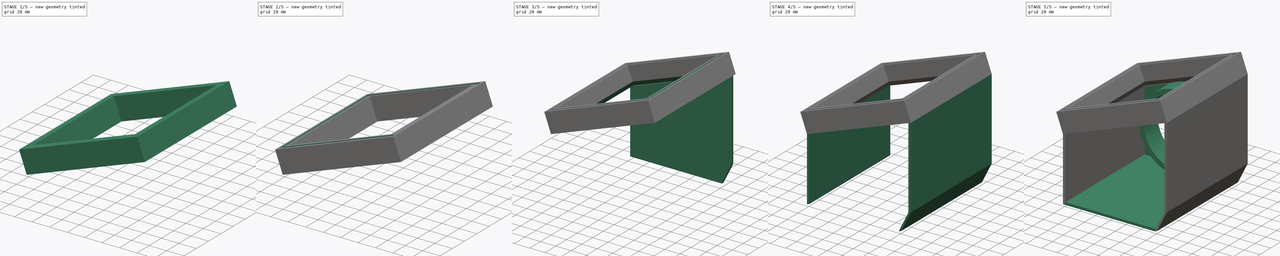
[diagram: build sequence overview — one tinted view per stage of 5, left to right]
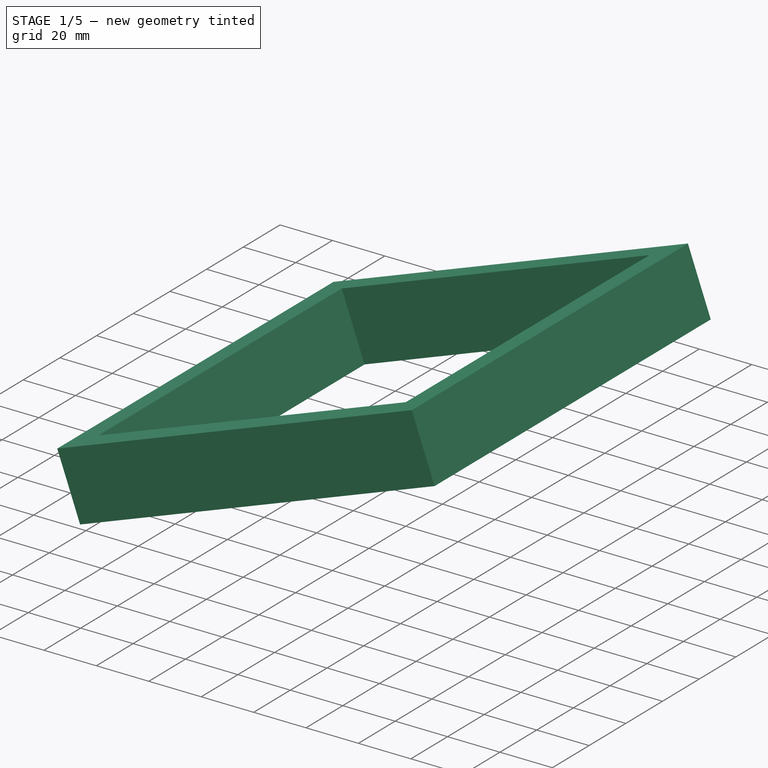
[diagram: stage 1 of 5 — iso view after this stage's code; geometry added in this stage tinted green]
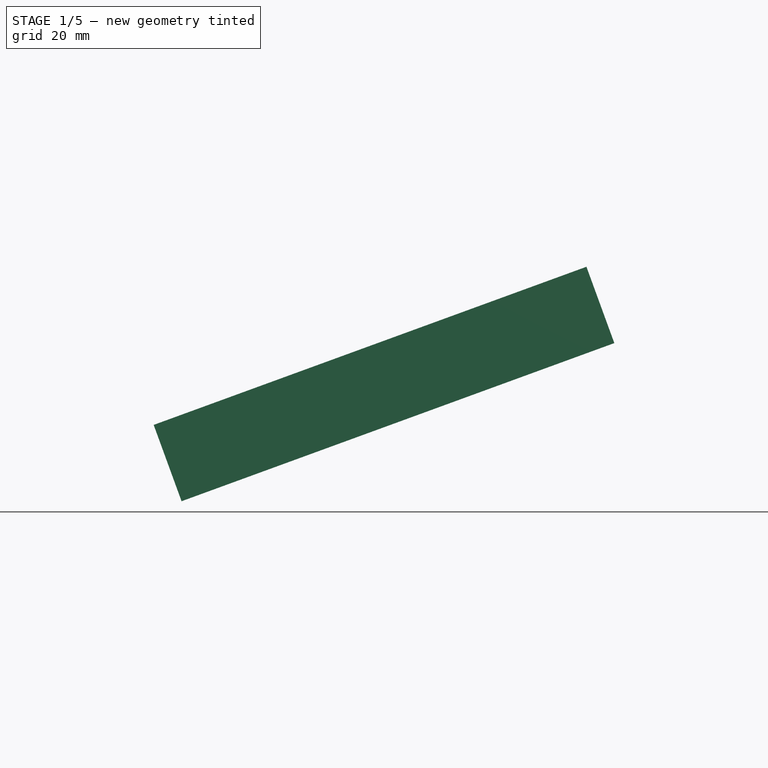
[diagram: stage 1 of 5 — front view after this stage's code; geometry added in this stage tinted green]
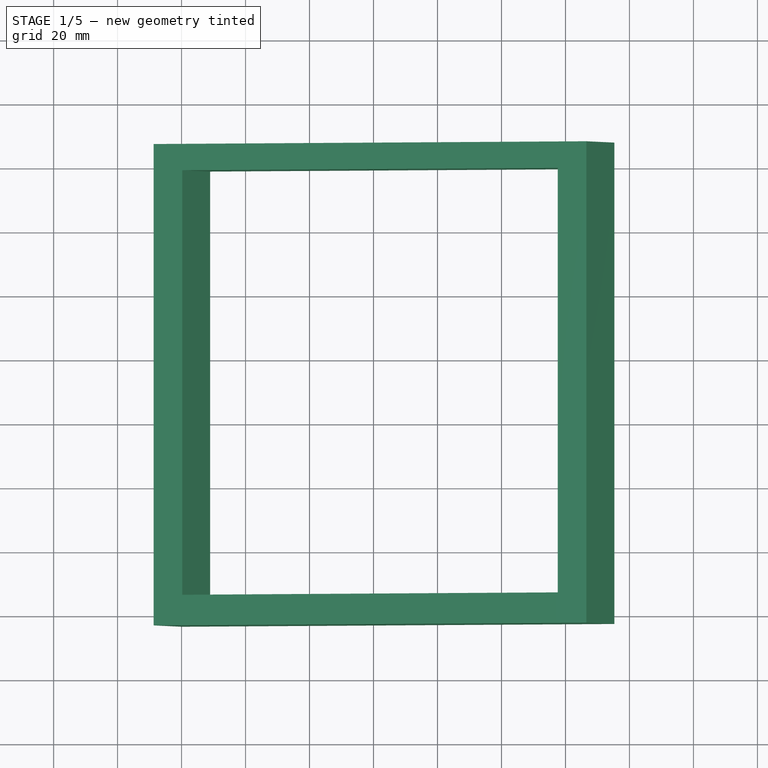
[diagram: stage 1 of 5 — top view after this stage's code; geometry added in this stage tinted green]
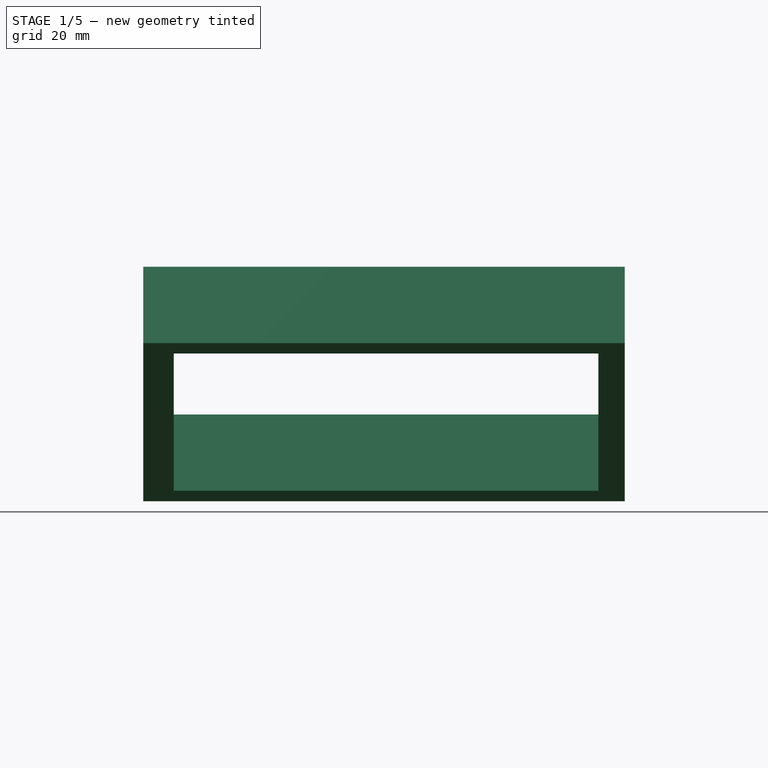
[diagram: stage 1 of 5 — right view after this stage's code; geometry added in this stage tinted green]
FCSTD DOCUMENT  (FreeCAD 0.16R6710 (Git))
Label: gutter
License: CreativeCommons Attribution
LicenseURL: http://creativecommons.org/licenses/by/4.0/
objects: Sketcher::SketchObject×6, Part::RuledSurface×5, PartDesign::Pocket×4, Part::Extrusion×4, App::FeaturePython×3, PartDesign::LinearPattern×3, PartDesign::Pad×2, Part::FeaturePython×1, Part::Box×1, PartDesign::Chamfer×1
note: 33 computed .brp shape members not serialized (recipe doc carries the construction recipe); baked Part::Feature solids carry a one-line shape summary decoded from their .brp

FEATURE [Part::Box] Box  label="Cube"
  Height = 25.4
  Length = 144.018
  Placement = pos=(-1.5e-11,-3.175,82.55) rot=(0,-1,0;0.350314rad)
  Width = 150.495
FEATURE [Sketcher::SketchObject] Sketch004
  Placement = pos=(-8.7171,-3.175,106.407) rot=(0,-1,0;0.350314rad)
  Support = -> Box [Face6]
  sketch-geometry (4):
    g0: LineSegment StartX=9.525 StartY=9.525 StartZ=0 EndX=134.493 EndY=9.525 EndZ=0
    g1: LineSegment StartX=134.493 StartY=9.525 StartZ=0 EndX=134.493 EndY=142.24 EndZ=0
    g2: LineSegment StartX=134.493 StartY=142.24 StartZ=0 EndX=9.525 EndY=142.24 EndZ=0
    g3: LineSegment StartX=9.525 StartY=142.24 StartZ=0 EndX=9.525 EndY=9.525 EndZ=0
  constraints (12):
    c: Coincident(g0,g1)
    c: Coincident(g1,g2)
    c: Coincident(g2,g3)
    c: Coincident(g3,g0)
    c: Horizontal(g0)
    c: Horizontal(g2)
    c: Vertical(g1)
    c: Vertical(g3)
    c: DistanceY(g-1,g0) = 9.525
    c: DistanceY(g3,g3) = 132.715
    c: DistanceX(g-1,g0) = 9.525
    c: DistanceX(g0,g0) = 124.968
FEATURE [App::FeaturePython] planeConstraint01  # a2plus constraint (typed FeaturePython)
  Object1 = Pocket
  Object2 = Box
  SubElement1 = Face8
  SubElement2 = Face5
  Type = plane
  directionConstraint = 1
  offset = 0
FEATURE [App::FeaturePython] planeConstraint02  # a2plus constraint (typed FeaturePython)
  Object1 = Box
  Object2 = Extrude003
  SubElement1 = Face4
  SubElement2 = Vertex5
  Type = plane
  directionConstraint = 0
  offset = 0
FEATURE [App::FeaturePython] planeConstraint03  # a2plus constraint (typed FeaturePython)
  Object1 = Box
  Object2 = Extrude003
  SubElement1 = Face1
  SubElement2 = Vertex5
  Type = plane
  directionConstraint = 0
  offset = 0
FEATURE [PartDesign::Pocket] Pocket001
  Length = 4.99999
  Placement = pos=(-1.5e-11,-3.175,82.55) rot=(0,-1,0;0.350314rad)
  Sketch = -> Sketch004
  Type = 1
FEATURE [PartDesign::LinearPattern] LinearPattern
  Direction = -> Pocket001 [Face4]
  Length = 111.379
  Occurrences = 6
  Originals = -> [Pocket001]
  Placement = pos=(-1.5e-11,-3.175,82.55) rot=(0,-1,0;0.350314rad)
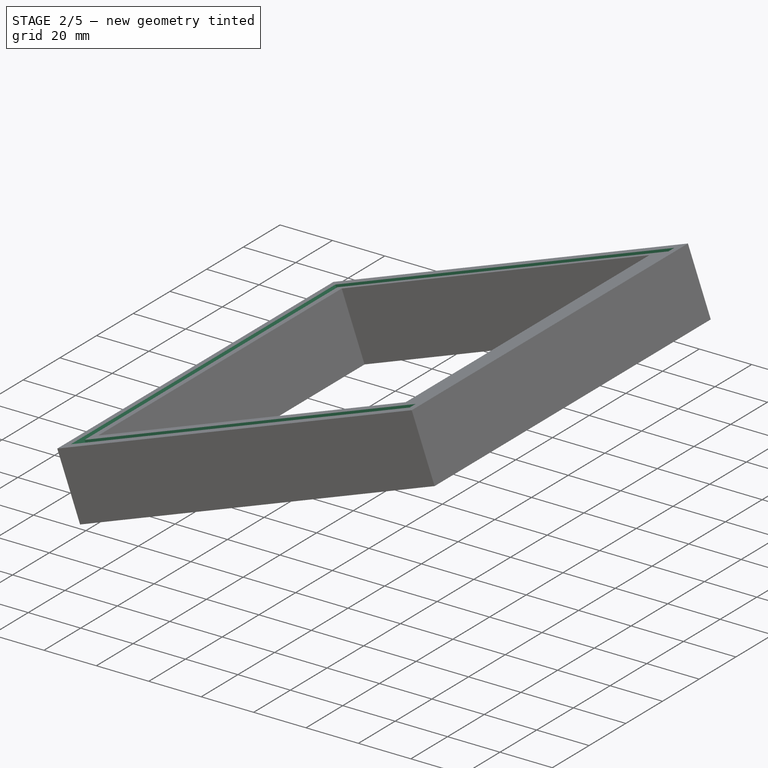
[diagram: stage 2 of 5 — iso view after this stage's code; geometry added in this stage tinted green]
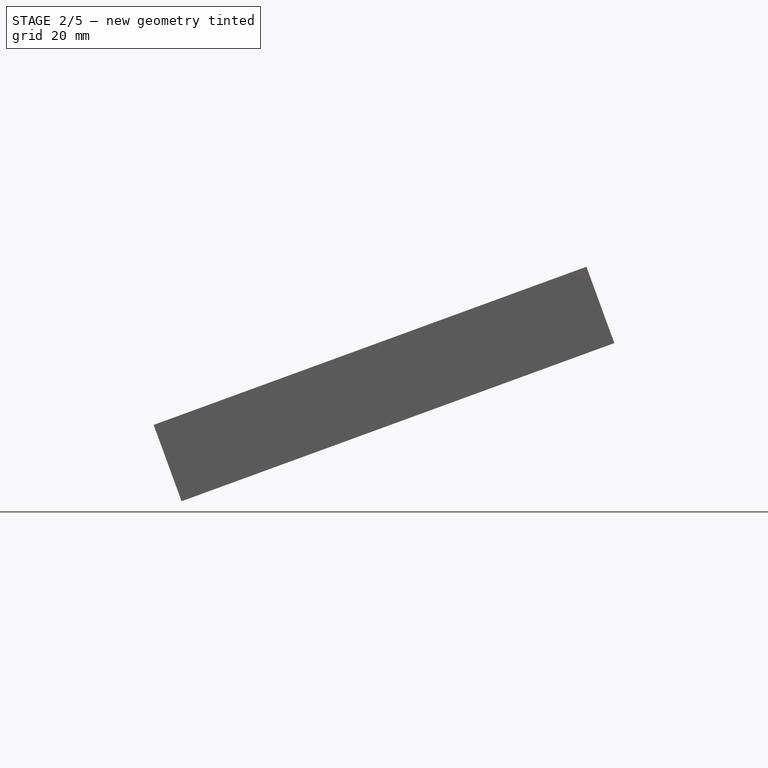
[diagram: stage 2 of 5 — front view after this stage's code; geometry added in this stage tinted green]
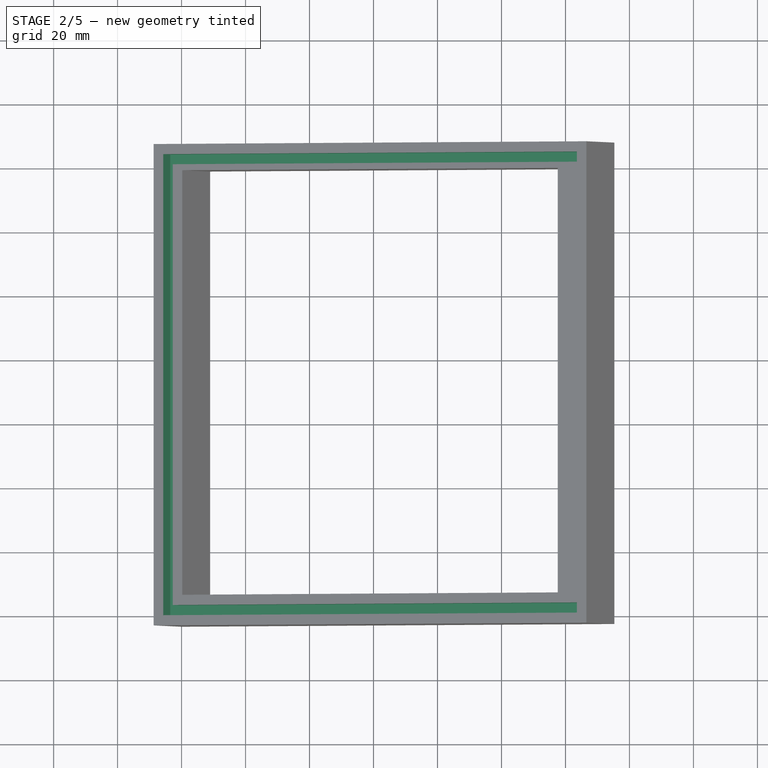
[diagram: stage 2 of 5 — top view after this stage's code; geometry added in this stage tinted green]
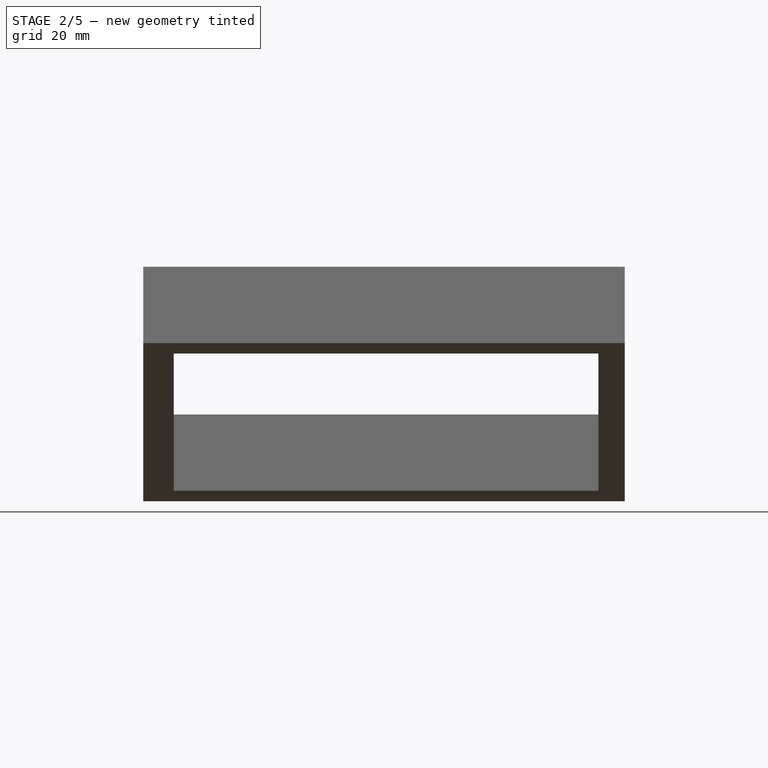
[diagram: stage 2 of 5 — right view after this stage's code; geometry added in this stage tinted green]
FEATURE [Sketcher::SketchObject] Sketch005
  Placement = pos=(-8.7171,-3.175,106.407) rot=(0,-1,0;0.350314rad)
  Support = -> LinearPattern [Face3]
  sketch-geometry (4):
    g0: LineSegment StartX=3.175 StartY=3.175 StartZ=0 EndX=140.843 EndY=3.175 EndZ=0
    g1: LineSegment StartX=140.843 StartY=3.175 StartZ=0 EndX=140.843 EndY=6.35 EndZ=0
    g2: LineSegment StartX=140.843 StartY=6.35 StartZ=0 EndX=3.175 EndY=6.35 EndZ=0
    g3: LineSegment StartX=3.175 StartY=6.35 StartZ=0 EndX=3.175 EndY=3.175 EndZ=0
  constraints (12):
    c: Coincident(g0,g1)
    c: Coincident(g1,g2)
    c: Coincident(g2,g3)
    c: Coincident(g3,g0)
    c: Horizontal(g0)
    c: Horizontal(g2)
    c: Vertical(g1)
    c: Vertical(g3)
    c: DistanceX(g0) = 3.175
    c: DistanceY(g0) = 3.175
    c: DistanceX(g0,g0) = 137.668
    c: DistanceY(g3,g3) = 3.175
FEATURE [PartDesign::Pocket] Pocket002
  Length = 6.35
  Placement = pos=(-1.5e-11,-3.175,82.55) rot=(0,-1,0;0.350314rad)
  Sketch = -> Sketch005
  Type = 0
FEATURE [PartDesign::LinearPattern] LinearPattern001
  Direction = -> Pocket002 [Face4]
  Length = 140.97
  Occurrences = 2
  Originals = -> [Pocket002]
  Placement = pos=(-1.5e-11,-3.175,82.55) rot=(0,-1,0;0.350314rad)
FEATURE [Sketcher::SketchObject] Sketch006
  Placement = pos=(-8.7171,-3.175,106.407) rot=(0,-1,0;0.350314rad)
  Support = -> LinearPattern001 [Face3]
  sketch-geometry (4):
    g0: LineSegment StartX=3.175 StartY=3.175 StartZ=0 EndX=6.35 EndY=3.175 EndZ=0
    g1: LineSegment StartX=6.35 StartY=3.175 StartZ=0 EndX=6.35 EndY=147.32 EndZ=0
    g2: LineSegment StartX=6.35 StartY=147.32 StartZ=0 EndX=3.175 EndY=147.32 EndZ=0
    g3: LineSegment StartX=3.175 StartY=147.32 StartZ=0 EndX=3.175 EndY=3.175 EndZ=0
  constraints (12):
    c: Coincident(g0,g1)
    c: Coincident(g1,g2)
    c: Coincident(g2,g3)
    c: Coincident(g3,g0)
    c: Horizontal(g0)
    c: Horizontal(g2)
    c: Vertical(g1)
    c: Vertical(g3)
    c: DistanceX(g0,g0) = 3.175
    c: DistanceX(g0) = 3.175
    c: DistanceY(g0) = 3.175
    c: DistanceY(g3,g3) = 144.145
FEATURE [PartDesign::Pocket] Pocket003
  Length = 6.35
  Placement = pos=(-1.5e-11,-3.175,82.55) rot=(0,-1,0;0.350314rad)
  Sketch = -> Sketch006
  Type = 0
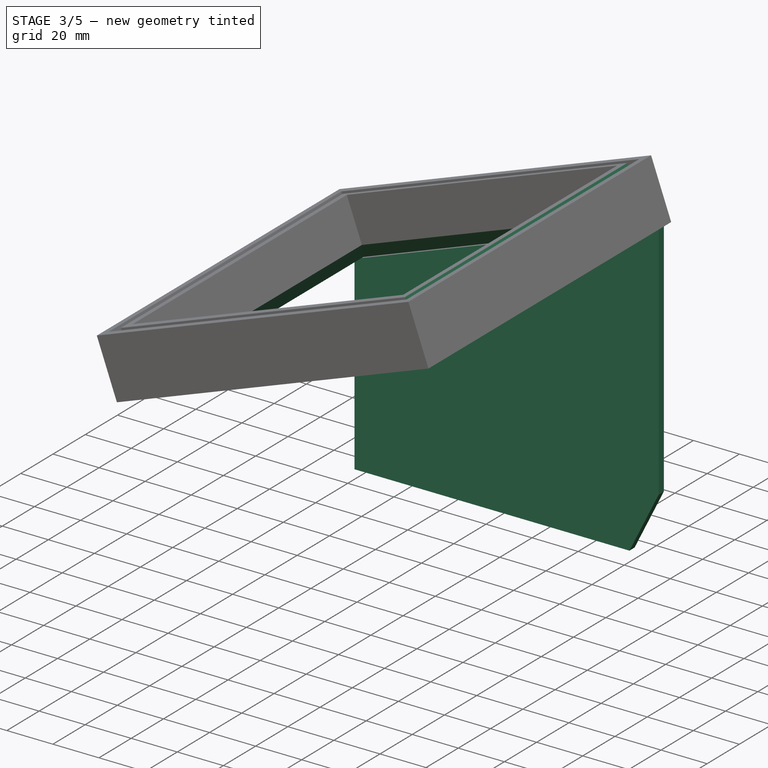
[diagram: stage 3 of 5 — iso view after this stage's code; geometry added in this stage tinted green]
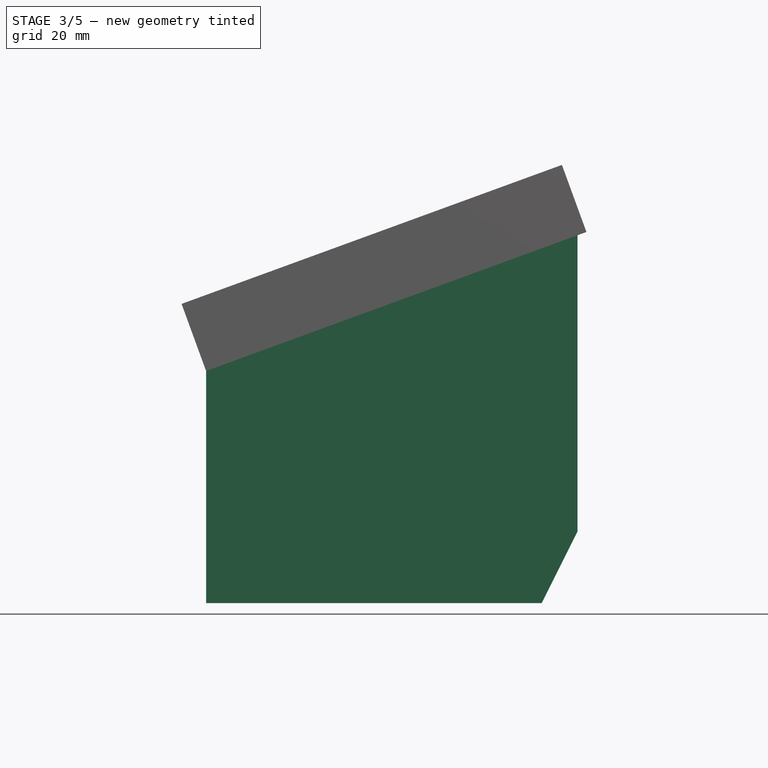
[diagram: stage 3 of 5 — front view after this stage's code; geometry added in this stage tinted green]
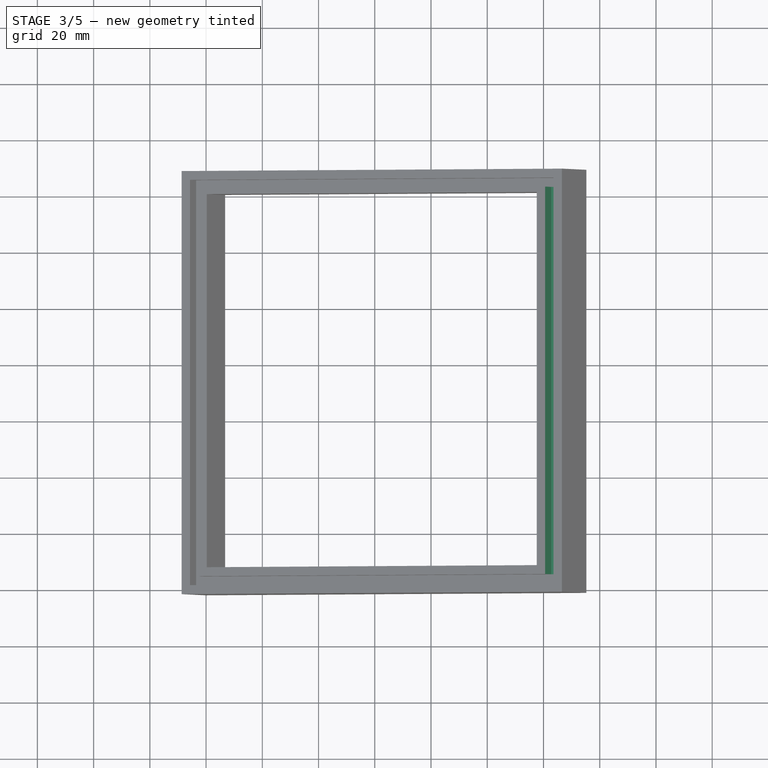
[diagram: stage 3 of 5 — top view after this stage's code; geometry added in this stage tinted green]
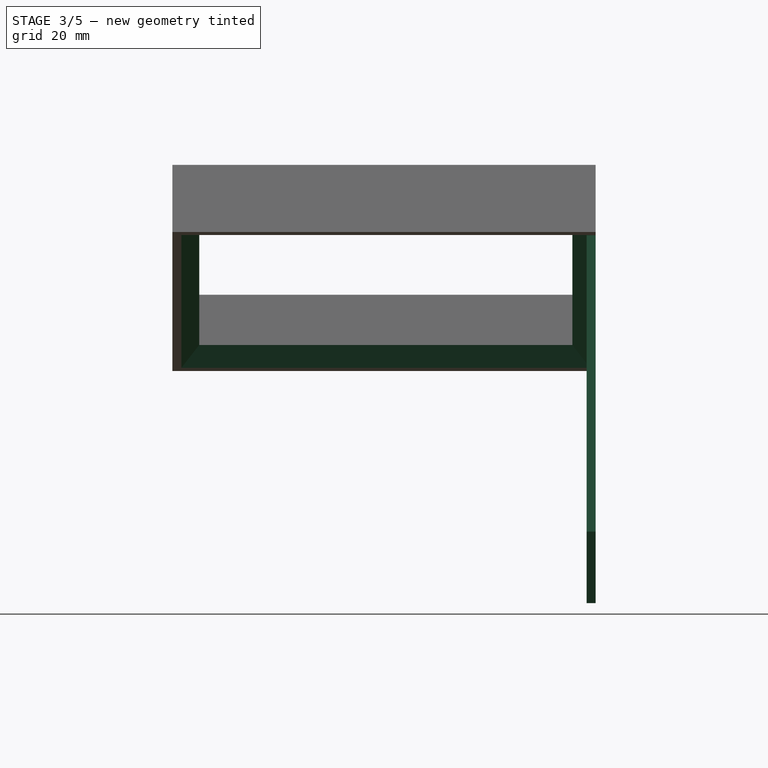
[diagram: stage 3 of 5 — right view after this stage's code; geometry added in this stage tinted green]
FEATURE [Sketcher::SketchObject] Sketch  label="Sketch Gutter Profile "
  Placement = pos=(0,0,0) rot=(1,0,0;1.5708rad)
  sketch-geometry (5):
    g0: LineSegment StartX=0 StartY=0 StartZ=0 EndX=119.38 EndY=0 EndZ=0
    g1: LineSegment StartX=119.38 StartY=0 StartZ=0 EndX=132.08 EndY=25.4 EndZ=0
    g2: LineSegment StartX=132.08 StartY=25.4 StartZ=0 EndX=132.08 EndY=130.81 EndZ=0
    g3: LineSegment StartX=132.08 StartY=130.81 StartZ=0 EndX=0 EndY=82.55 EndZ=0
    g4: LineSegment StartX=0 StartY=82.55 StartZ=0 EndX=0 EndY=0 EndZ=0
  constraints (14):
    c: Coincident(g-1,g0)
    c: Horizontal(g0)
    c: Coincident(g0,g1)
    c: Coincident(g1,g2)
    c: Vertical(g2)
    c: Coincident(g3,g4)
    c: Coincident(g4,g0)
    c: DistanceX(g0,g0) = 119.38
    c: DistanceY(g2,g2) = 105.41
    c: Coincident(g3,g2)
    c: DistanceY(g0,g1) = 25.4
    c: Vertical(g4)
    c: DistanceX(g0,g1) = 12.7
    c: DistanceY(g4,g4) = 82.55
FEATURE [PartDesign::Pad] Pad  label="Side Right"
  Length = 3.175
  Length2 = 100
  Placement = pos=(0,0,0) rot=(1,0,0;1.5708rad)
  Sketch = -> Sketch
  Type = 0
FEATURE [Part::FeaturePython] Clone  label="Side Left"  # Draft clone (typed FeaturePython)
  Objects = -> [Pad]
  Placement = pos=(0,147.32,0) rot=(1,0,0;1.5708rad)
  Scale = (1,1,1)
FEATURE [PartDesign::LinearPattern] LinearPattern002
  Direction = -> Sketch006 [H_Axis]
  Length = 134.493
  Occurrences = 2
  Originals = -> [Pocket003]
  Placement = pos=(-1.5e-11,-3.175,82.55) rot=(0,-1,0;0.350314rad)
FEATURE [PartDesign::Chamfer] Chamfer
  Base = -> LinearPattern002 [Edge25,Edge28,Edge27,Edge26]
  Placement = pos=(-1.5e-11,-3.175,82.55) rot=(0,-1,0;0.350314rad)
  Size = 6.35
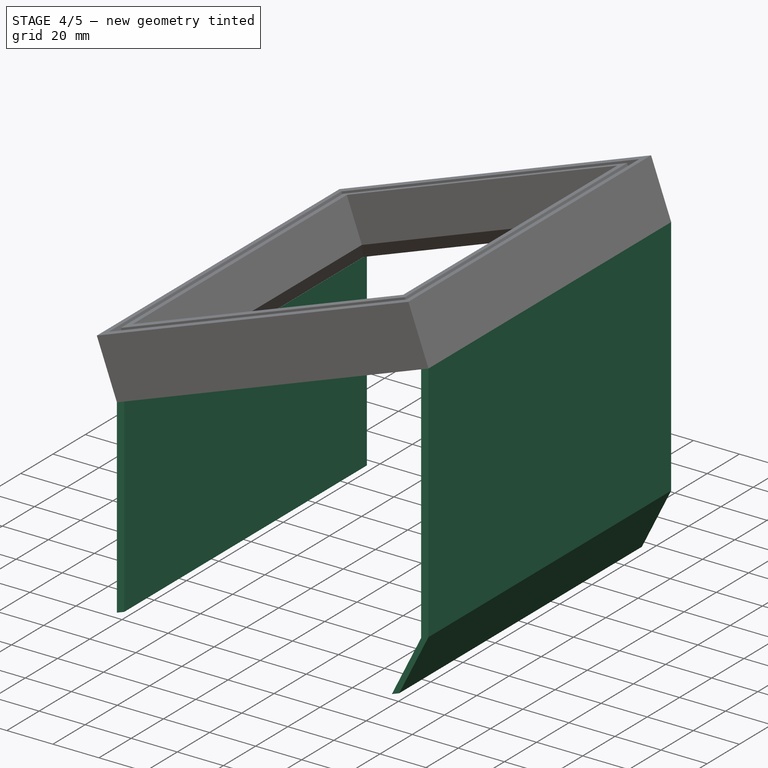
[diagram: stage 4 of 5 — iso view after this stage's code; geometry added in this stage tinted green]
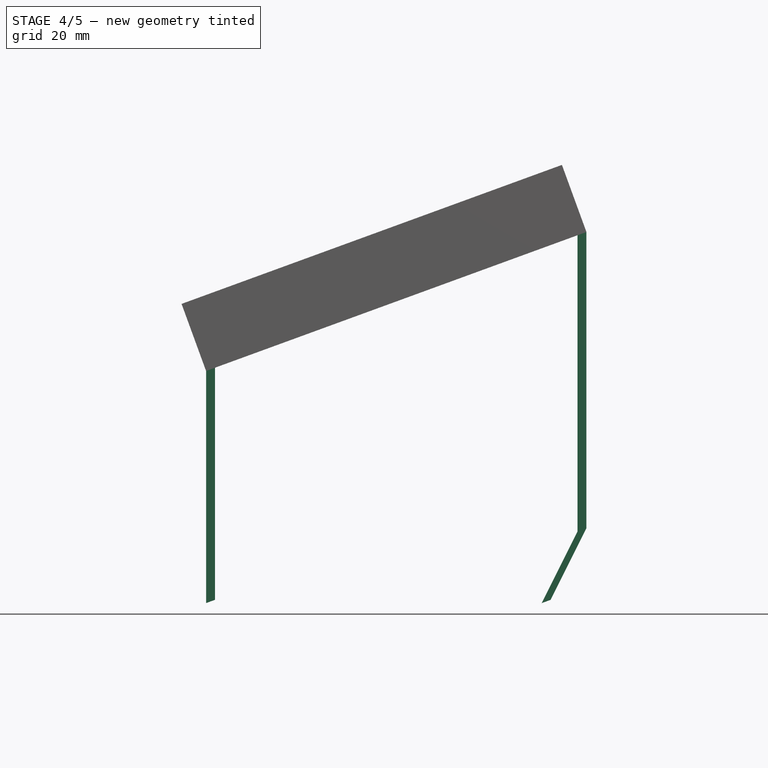
[diagram: stage 4 of 5 — front view after this stage's code; geometry added in this stage tinted green]
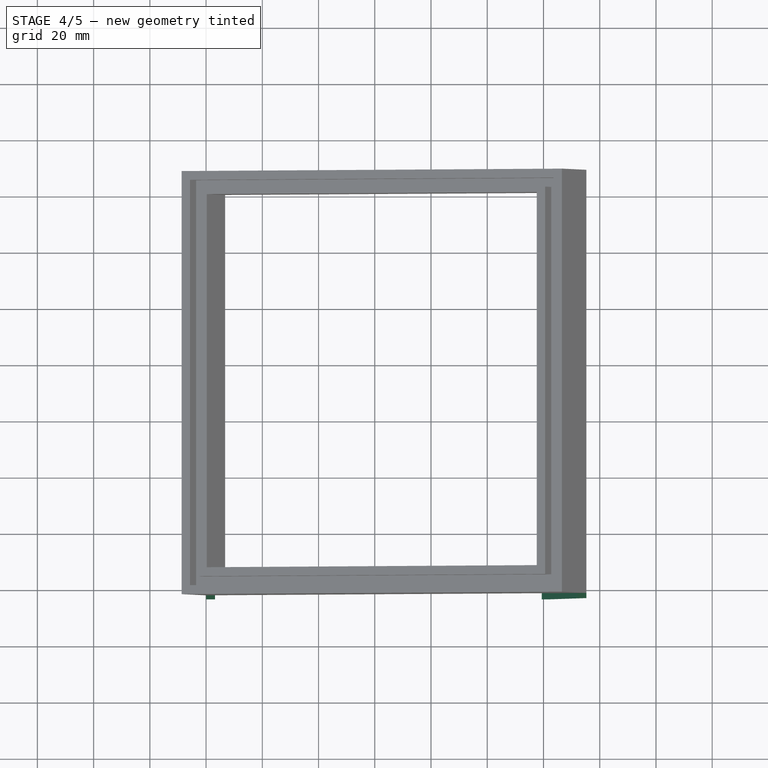
[diagram: stage 4 of 5 — top view after this stage's code; geometry added in this stage tinted green]
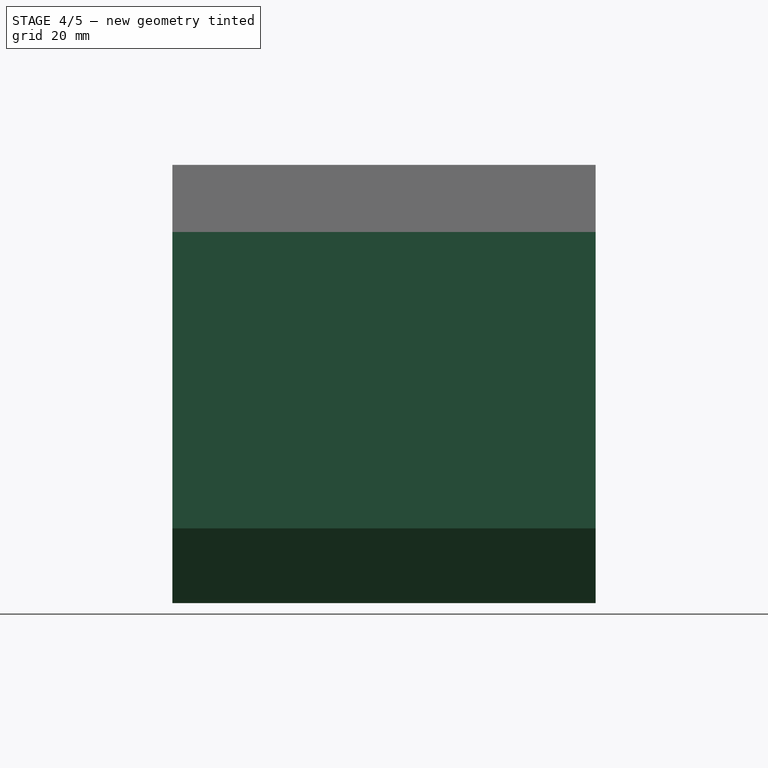
[diagram: stage 4 of 5 — right view after this stage's code; geometry added in this stage tinted green]
FEATURE [Part::Extrusion] Extrude001
  Base = -> Ruled_Surface001
  Dir = (3.17,0,1.16)
  Solid = true
FEATURE [Part::Extrusion] Extrude002
  Base = -> Ruled_Surface002
  Dir = (3.17,0,1.16)
  Solid = true
FEATURE [Part::Extrusion] Extrude003
  Base = -> Ruled_Surface003
  Dir = (3.17,0,1.16)
  Solid = true
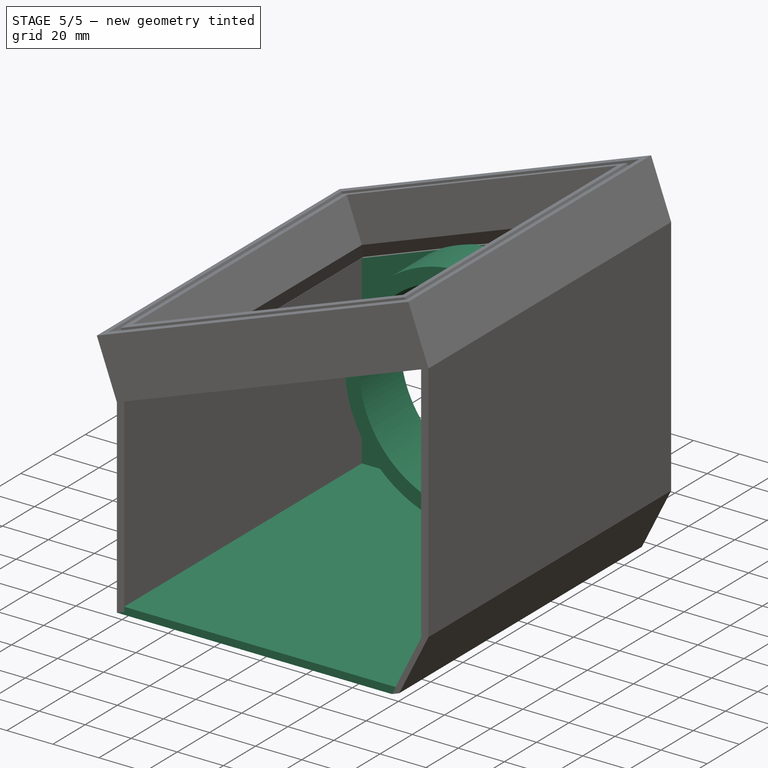
[diagram: stage 5 of 5 — iso view after this stage's code; geometry added in this stage tinted green]
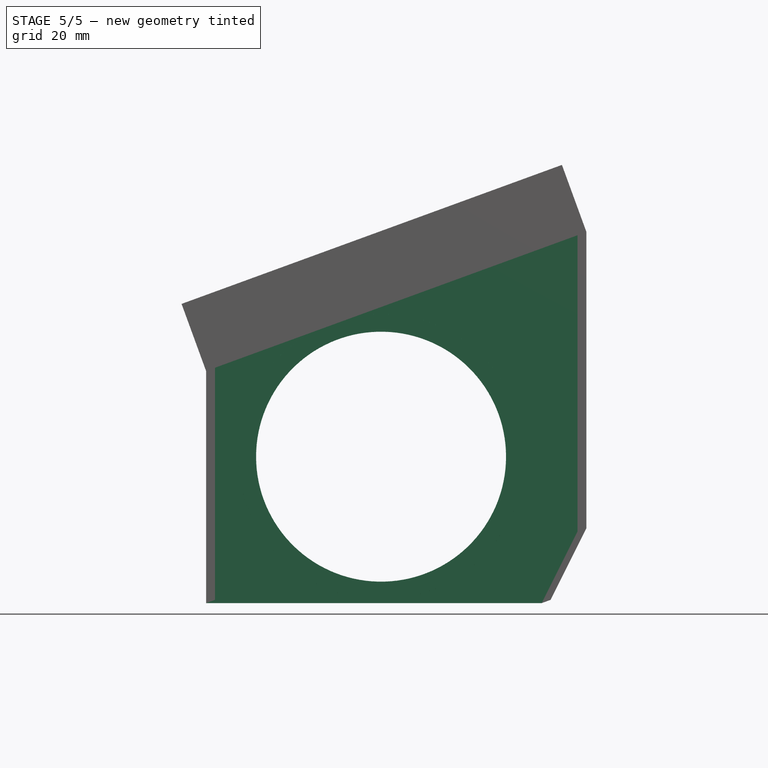
[diagram: stage 5 of 5 — front view after this stage's code; geometry added in this stage tinted green]
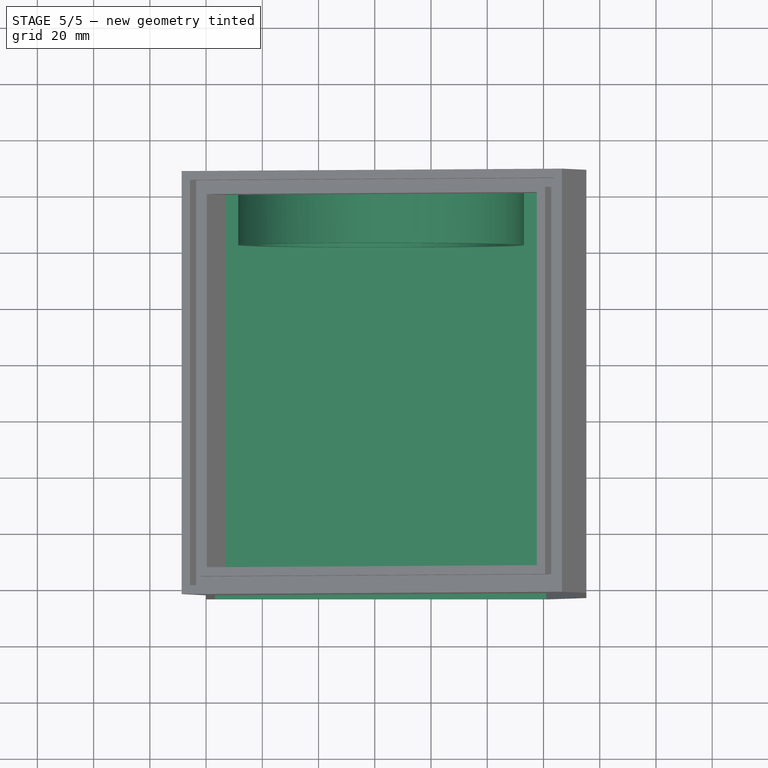
[diagram: stage 5 of 5 — top view after this stage's code; geometry added in this stage tinted green]
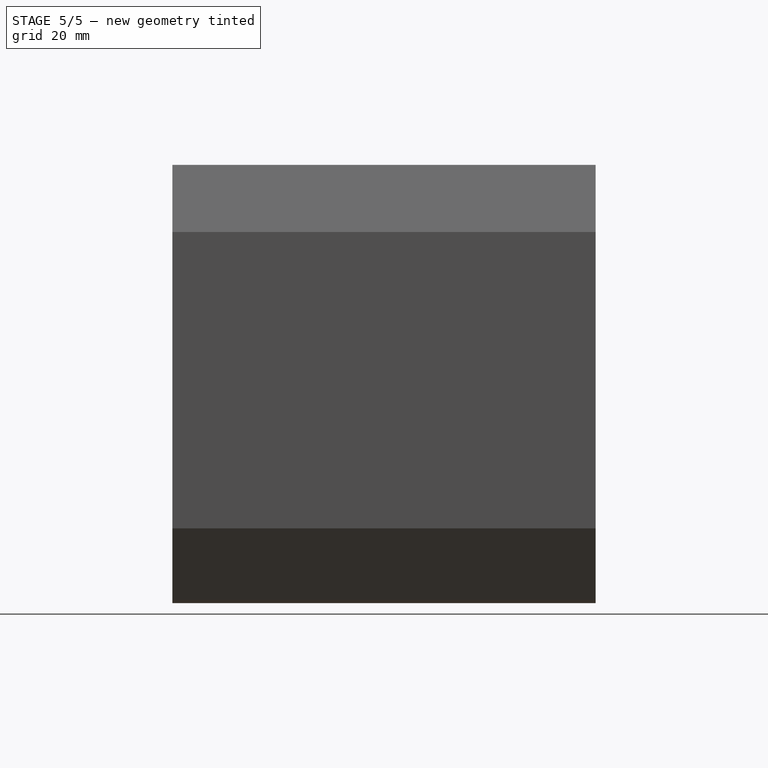
[diagram: stage 5 of 5 — right view after this stage's code; geometry added in this stage tinted green]
FEATURE [Part::RuledSurface] Ruled_Surface
  Curve1 = -> Pad [Edge4]
  Curve2 = -> Clone [Edge3]
  Orientation = 0
FEATURE [Part::RuledSurface] Ruled_Surface001
  Curve1 = -> Clone [Edge6]
  Curve2 = -> Pad [Edge7]
  Orientation = 0
FEATURE [Part::RuledSurface] Ruled_Surface002
  Curve1 = -> Clone [Edge9]
  Curve2 = -> Pad [Edge10]
  Orientation = 0
FEATURE [Part::RuledSurface] Ruled_Surface003
  Curve1 = -> Pad [Edge15]
  Curve2 = -> Clone [Edge14]
  Orientation = 0
FEATURE [Sketcher::SketchObject] Sketch002  label="Side Left PCV Wall Sketch"
  Placement = pos=(0,147.32,0) rot=(-1,0,0;1.5708rad)
  Support = -> Clone [Face6]
  sketch-geometry (2):
    g0: Circle CenterX=62.23 CenterY=-52.07 CenterZ=0 NormalX=0 NormalY=0 NormalZ=1 Radius=44.45
    g1: Circle CenterX=62.23 CenterY=-52.07 CenterZ=0 NormalX=0 NormalY=0 NormalZ=1 Radius=50.8
  constraints (5):
    c: Radius(g0) = 44.45
    c: DistanceX(g0) = 62.23
    c: DistanceY(g0) = -52.07
    c: Coincident(g1,g0)
    c: Radius(g1) = 50.8
FEATURE [PartDesign::Pad] Pad001  label="Side Left Pocket Partial"
  Length = 25.4
  Length2 = 100
  Placement = pos=(0,147.32,0) rot=(1,0,0;1.5708rad)
  Reversed = true
  Sketch = -> Sketch002
  Type = 0
FEATURE [Sketcher::SketchObject] Sketch003  label="Side Left PVC Hole Sketch"
  Placement = pos=(0,147.32,0) rot=(-1,0,0;1.5708rad)
  Support = -> Pad001 [Face4]
  sketch-geometry (1):
    g0: Circle CenterX=62.23 CenterY=-52.07 CenterZ=0 NormalX=0 NormalY=0 NormalZ=1 Radius=44.45
  constraints (3):
    c: Radius(g0) = 44.45
    c: DistanceX(g0) = 62.23
    c: DistanceY(g0) = -52.07
FEATURE [PartDesign::Pocket] Pocket  label="Side Left Hole Complete"
  Length = 4.99999
  Placement = pos=(0,147.32,0) rot=(1,0,0;1.5708rad)
  Sketch = -> Sketch003
  Type = 1
FEATURE [Part::RuledSurface] Ruled_Surface004
  Curve1 = -> Pocket [Edge11]
  Curve2 = -> Pad [Edge13]
  Orientation = 0
FEATURE [Part::Extrusion] Extrude
  Base = -> Ruled_Surface
  Dir = (3.175,0,3.175)
  Solid = true
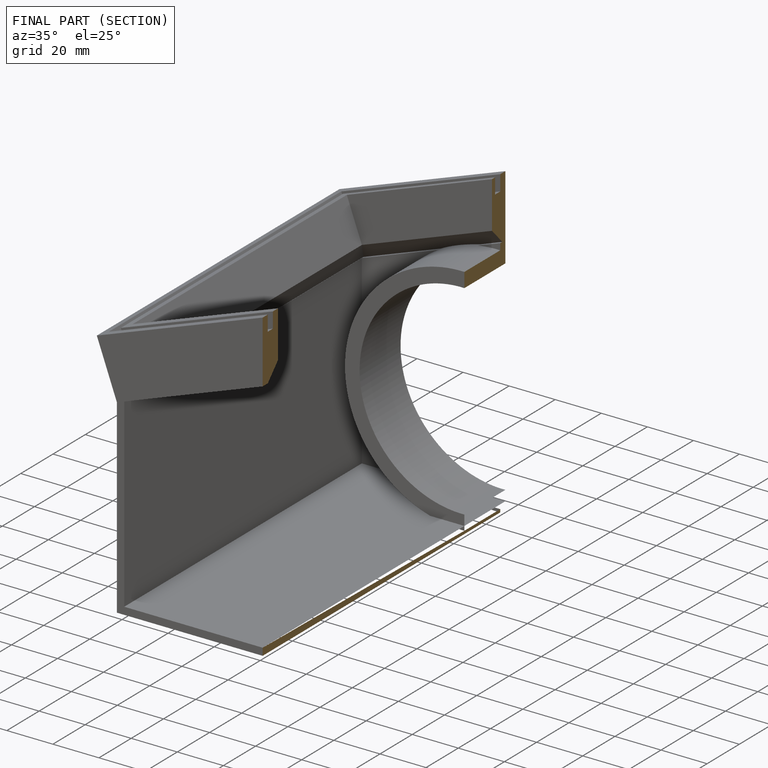
[diagram: finished part — half-section view (interior)]
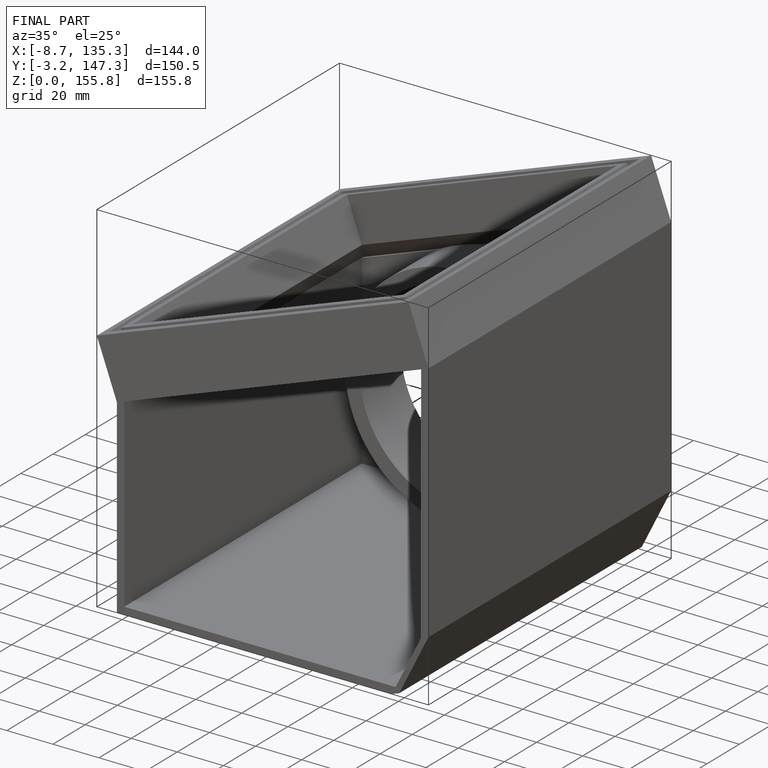
[diagram: finished part — iso view with bounding-box wireframe]
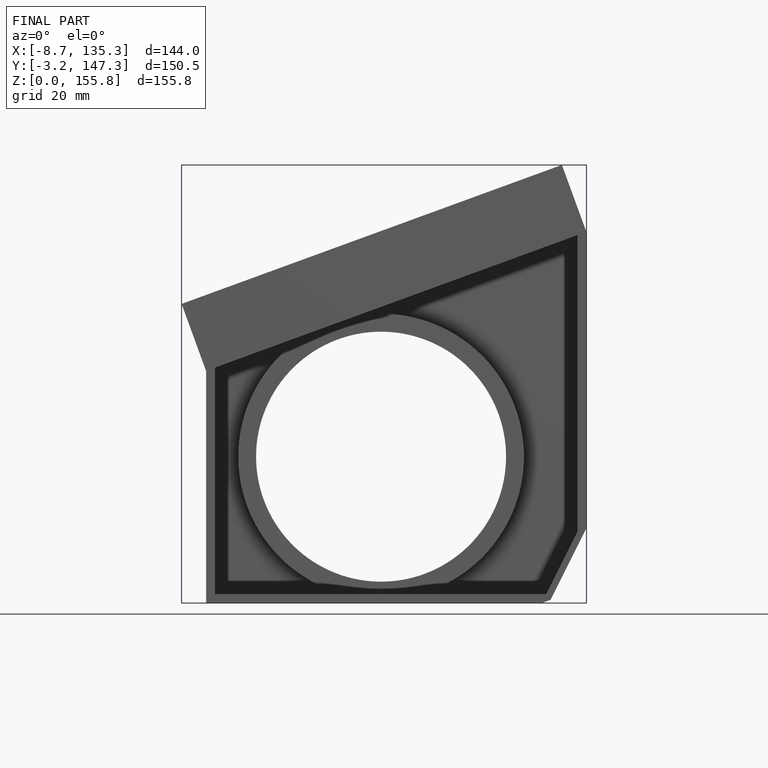
[diagram: finished part — front view with bounding-box wireframe]
